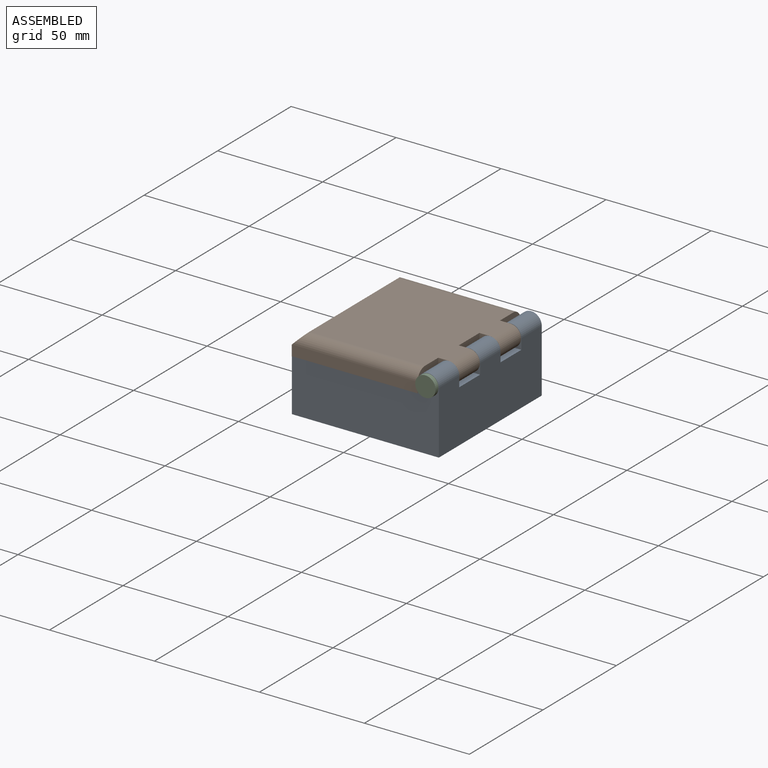
[diagram: assembled view]
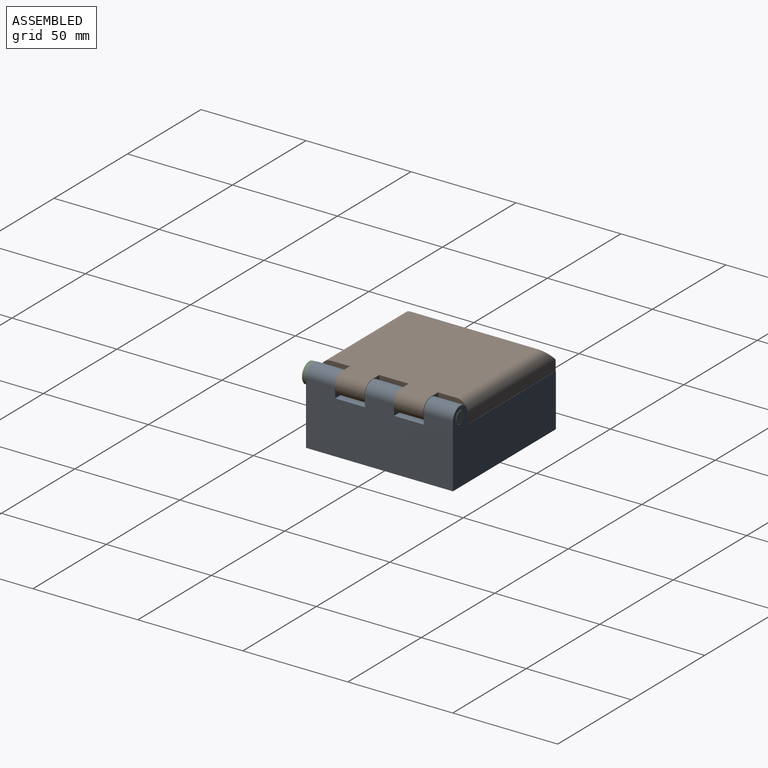
[diagram: assembled view, second angle]
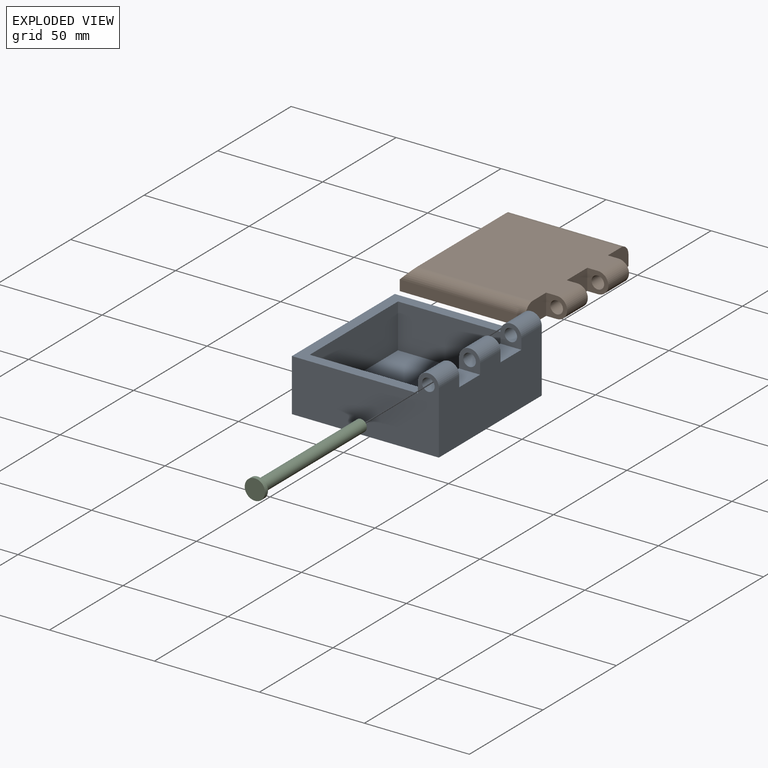
[diagram: exploded view]
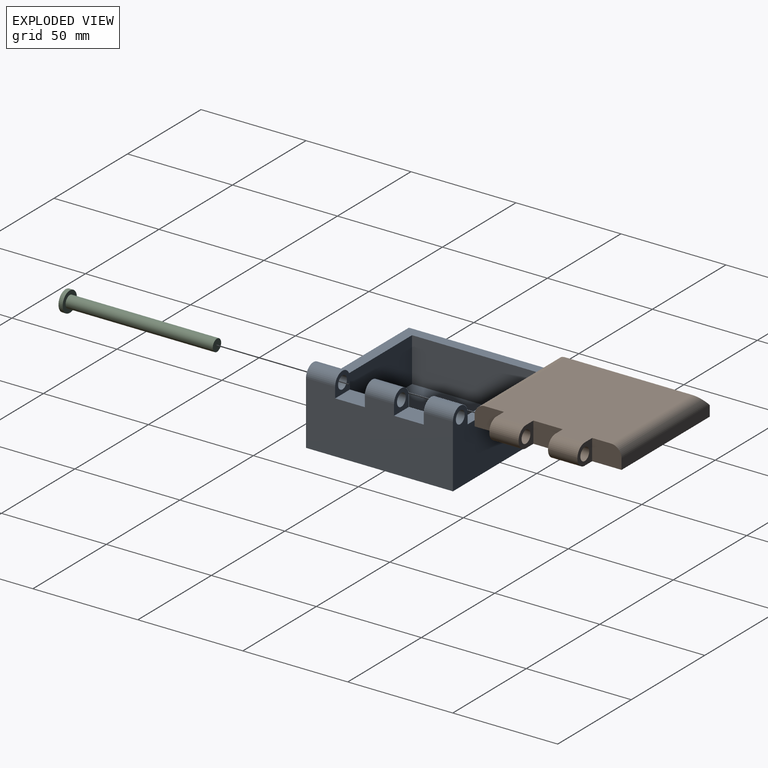
[diagram: exploded view, second angle]
ASSEMBLY  parts=3 mates=2
PART A: 23 faces, bbox 70x70x35 mm
  f0: plane 70x60mm, normal (0,0,1), area 900mm2, adj f1,f2,f7,f12,f20,f21,f22
  f1: plane 70x35mm, normal (0,1,0), area 1811mm2, adj f0,f7,f8,f11,f12,f16,f17
  f2: plane 70x35mm, normal (0,-1,0), area 1811mm2, adj f0,f7,f8,f11,f12,f18,f19
  f3: plane 10x10mm, normal (0,1,0), area 61mm2, adj f7,f8,f10,f18,f19
  f4: plane 10x10mm, normal (0,-1,0), area 61mm2, adj f7,f8,f9,f16,f17
  f5: plane 10x10mm, normal (0,1,0), area 61mm2, adj f7,f8,f9,f14,f15
  f6: plane 10x10mm, normal (0,-1,0), area 61mm2, adj f7,f8,f10,f14,f15
  f7: plane 70x26mm, normal (-1,0,0), area 1468.5mm2, adj f0,f1,f2,f3,f4,f5,f6,f9
  f8: plane 70x30mm, normal (1,0,0), area 1958.5mm2, adj f1,f2,f3,f4,f5,f6,f9,f10
  f9: plane 14.15x10mm, normal (0,0,1), area 141.5mm2, adj f4,f5,f7,f8
  f10: plane 14.15x10mm, normal (0,0,1), area 141.5mm2, adj f3,f6,f7,f8
  f11: plane 70x70mm, normal (0,0,-1), area 4900mm2, adj f1,f2,f8,f12
  f12: plane 70x25mm, normal (-1,0,0), area 1750mm2, adj f0,f1,f2,f11
  f13: plane 60x55mm, normal (0,0,1), area 3300mm2, adj f7,f20,f21,f22
  f14: cylinder r=3mm len=13.9mm, axis (0,-1,0), area 262mm2, adj f5,f6
  f15: cylinder r=5mm len=13.9mm, axis (0,-1,0), area 218.3mm2, adj f5,f6,f7,f8
  f16: cylinder r=3mm len=13.9mm, axis (0,-1,0), area 262mm2, adj f1,f4
  f17: cylinder r=5mm len=13.9mm, axis (0,-1,0), area 218.3mm2, adj f1,f4,f7,f8
  f18: cylinder r=3mm len=13.9mm, axis (0,-1,0), area 262mm2, adj f2,f3
  f19: cylinder r=5mm len=13.9mm, axis (0,-1,0), area 218.3mm2, adj f2,f3,f7,f8
  f20: plane 55x21mm, normal (0,-1,0), area 1155mm2, adj f0,f7,f13,f21
  f21: plane 60x21mm, normal (1,0,0), area 1260mm2, adj f0,f13,f20,f22
  f22: plane 55x21mm, normal (0,1,0), area 1155mm2, adj f0,f7,f13,f21
PART B: 19 faces, bbox 70x70x10 mm
  f0: plane 10.05x10mm, normal (0,1,0), area 61.5mm2, adj f3,f5,f11,f14,f15
  f1: plane 10.05x10mm, normal (0,-1,0), area 61.5mm2, adj f3,f5,f11,f12,f13
  f2: plane 10.05x10mm, normal (0,1,0), area 61.5mm2, adj f3,f6,f11,f12,f13
  f3: plane 70x65.03mm, normal (0,0,-1), area 4338.6mm2, adj f0,f1,f2,f4,f5,f6,f7,f8
  f4: plane 10.05x10mm, normal (0,-1,0), area 61.5mm2, adj f3,f10,f11,f14,f15
  f5: plane 14x10mm, normal (1,0,0), area 140mm2, adj f0,f1,f3,f11
  f6: plane 14x10mm, normal (1,0,0), area 134.6mm2, adj f2,f3,f7,f11,f18
  f7: plane 59.95x5mm, normal (0,1,0), area 299.8mm2, adj f3,f6,f8,f18
  f8: plane 70x5mm, normal (-1,0,0), area 350mm2, adj f3,f7,f9,f16
  f9: plane 59.95x5mm, normal (0,-1,0), area 299.8mm2, adj f3,f8,f10,f17
  f10: plane 14x10mm, normal (1,0,0), area 134.6mm2, adj f3,f4,f9,f11,f17
  f11: plane 60.03x60mm, normal (0,0,1), area 3439.1mm2, adj f0,f1,f2,f4,f5,f6,f10,f13
  f12: cylinder r=3mm len=14mm, axis (0,-1,0), area 263.9mm2, adj f1,f2
  f13: cylinder r=5mm len=14mm, axis (0,-1,0), area 219.2mm2, adj f1,f2,f3,f11
  f14: cylinder r=3mm len=14mm, axis (0,-1,0), area 263.9mm2, adj f0,f4
  f15: cylinder r=5mm len=14mm, axis (0,-1,0), area 219.2mm2, adj f0,f3,f4,f11
  f16: plane 70x5mm, normal (-0.71,0,0.71), area 479.8mm2, adj f8,f11,f17,f18
  f17: cylinder r=5mm len=59.95mm, axis (-1,0,0), area 445.8mm2, adj f9,f10,f11,f16
  f18: cylinder r=5mm len=59.95mm, axis (1,0,0), area 445.8mm2, adj f6,f7,f11,f16
PART C: 5 faces, bbox 9.7x9.7x72.1 mm
  f0: cylinder r=2.85mm len=70.1mm, axis (0,0,-1), area 1255.3mm2, adj f1,f4
  f1: plane 5.7x5.7mm, normal (0,0,1), area 25.5mm2, adj f0
  f2: cylinder r=4.85mm len=9.7mm, axis (0,0,1), area 60.9mm2, adj f3,f4
  f3: plane 9.7x9.7mm, normal (0,0,-1), area 73.9mm2, adj f2
  f4: plane 9.7x9.7mm, normal (0,0,1), area 48.4mm2, adj f0,f2
PLACE A t=(0.15,-0.33,-18.13)mm fixed
PLACE B t=(0.16,-0.57,6.87)mm
PLACE C rot(axis=(-1,0,0),90deg) t=(30.15,-35.33,11.87)mm
MATE revolute B.f12 <-> A.f14  axis (0,-1,0) through (30.15,-21.43,11.87)mm
MATE fastened C.f0 <-> A.f14  axis (0,-1,0) through (30.15,-35.33,11.87)mm
